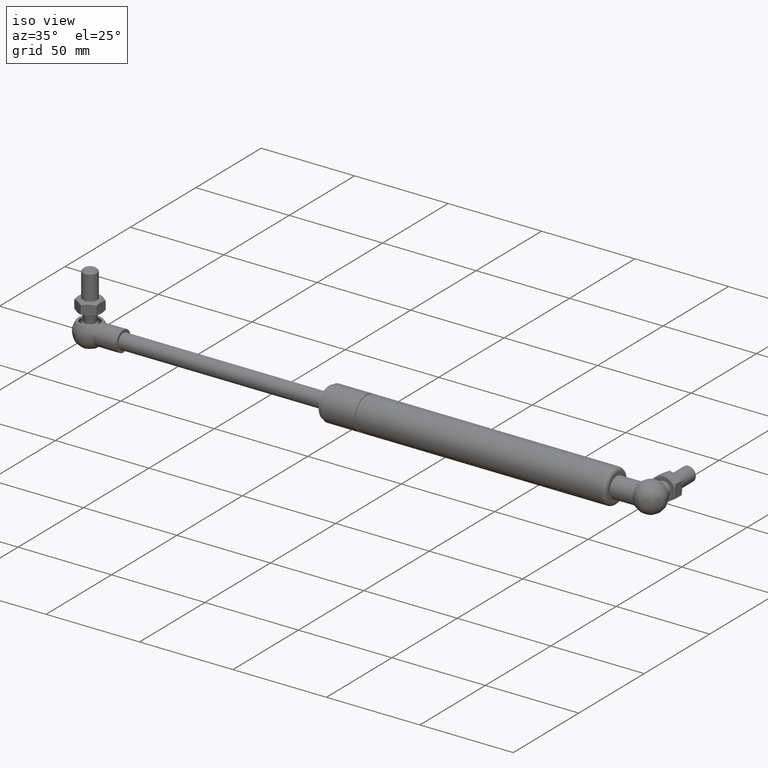
[diagram: clean part render]
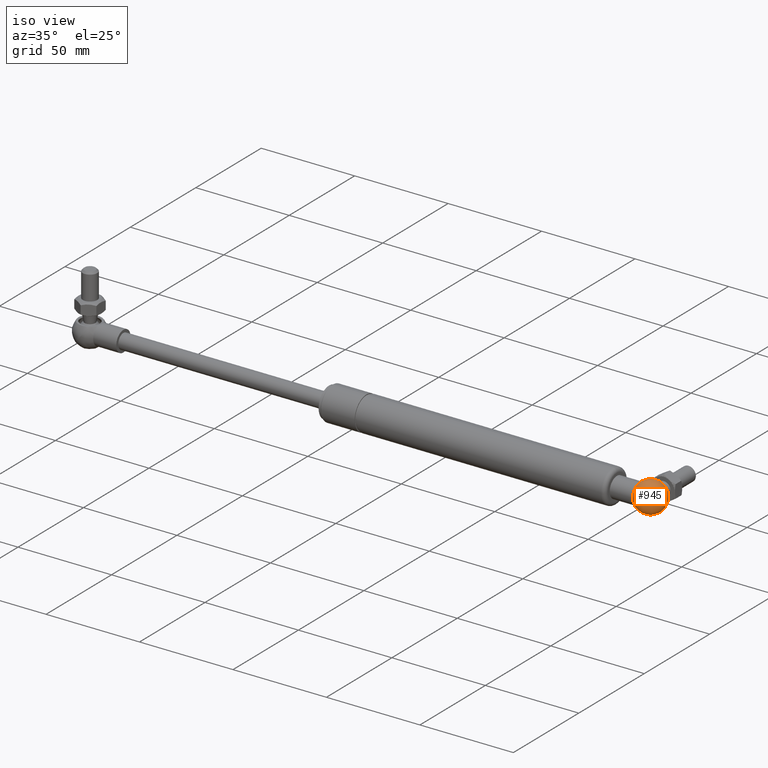
[diagram: same view with one face highlighted and labeled with its STEP entity id]
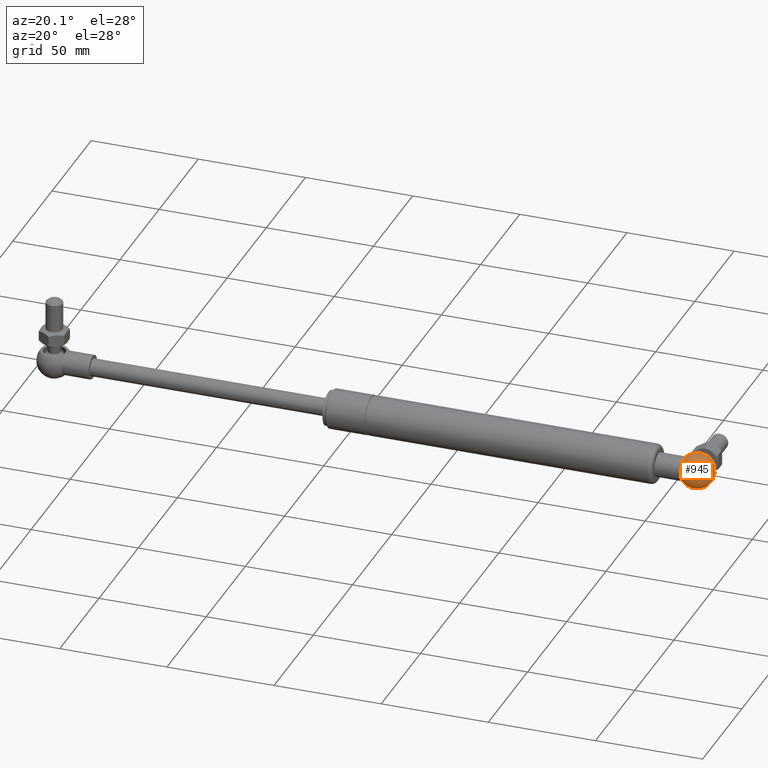
[diagram: same view with one face highlighted and labeled with its STEP entity id]
A machine part, iso view. The second image highlights one B-rep face of the part: STEP entity #945.
A second angle (auxiliary view) of the same face is appended — the face is thin or edge-on in the first view.
In plain terms, the highlighted spherical surface has radius 8 mm.
Its self-contained STEP definition (entity closure, byte-faithful):
#57=B_SPLINE_CURVE_WITH_KNOTS('',3,(#1556,#1557,#1558,#1559,#1560,#1561,
#1562,#1563,#1564,#1565,#1566,#1567,#1568,#1569,#1570,#1571,#1572,#1573,
#1574,#1575,#1576,#1577,#1578,#1579,#1580,#1581,#1582,#1583,#1584,#1585),
 .UNSPECIFIED.,.F.,.F.,(4,2,2,2,2,2,2,2,2,2,2,2,2,2,4),(0.226411490740119,
0.414498239778627,0.621672182915766,0.828846126052906,1.03602006919005,
1.24319401232718,1.4504431322165,1.65769225210581,1.86494399782939,2.07219574355296,
2.27936994878894,2.48654415402491,2.69371835926088,2.90089256449685,3.0889831618439),
 .UNSPECIFIED.);
#60=SPHERICAL_SURFACE('',#1067,8.);
#193=FACE_BOUND('',#352,.T.);
#352=EDGE_LOOP('',(#714,#715));
#420=CIRCLE('',#1050,6.2449979983984);
#480=VERTEX_POINT('',#1543);
#481=VERTEX_POINT('',#1545);
#560=EDGE_CURVE('',#481,#480,#420,.T.);
#565=EDGE_CURVE('',#480,#481,#57,.T.);
#714=ORIENTED_EDGE('',*,*,#565,.T.);
#715=ORIENTED_EDGE('',*,*,#560,.T.);
#945=ADVANCED_FACE('',(#193),#60,.T.);
#1050=AXIS2_PLACEMENT_3D('',#1546,#1269,#1270);
#1067=AXIS2_PLACEMENT_3D('',#1602,#1305,#1306);
#1269=DIRECTION('center_axis',(-1.,-1.51049968003737E-16,0.));
#1270=DIRECTION('ref_axis',(0.,0.,-1.));
#1305=DIRECTION('center_axis',(6.12323399573677E-17,0.,1.));
#1306=DIRECTION('ref_axis',(1.,0.,0.));
#1543=CARTESIAN_POINT('',(5.,-5.86642023334873,-10.1412878474779));
#1545=CARTESIAN_POINT('',(5.,-5.74805303087547,-5.55871215252208));
#1546=CARTESIAN_POINT('Origin',(5.,7.55249840018686E-16,-8.));
#1556=CARTESIAN_POINT('Ctrl Pts',(5.,-5.86642023334873,-10.1412878474779));
#1557=CARTESIAN_POINT('Ctrl Pts',(4.72281011655418,-5.88188651154419,-10.746165763081));
#1558=CARTESIAN_POINT('Ctrl Pts',(4.33212034981124,-5.89588500020387,-11.2961108828518));
#1559=CARTESIAN_POINT('Ctrl Pts',(3.40057256123341,-5.91953676970379,-12.2275396109939));
#1560=CARTESIAN_POINT('Ctrl Pts',(2.78217069209722,-5.93024264975391,-12.6507577079101));
#1561=CARTESIAN_POINT('Ctrl Pts',(1.42717457985649,-5.94442146261415,-13.2119885932371));
#1562=CARTESIAN_POINT('Ctrl Pts',(0.690579810457132,-5.94789878864797,-13.35));
#1563=CARTESIAN_POINT('Ctrl Pts',(-0.690579810457132,-5.94789878864797,
-13.35));
#1564=CARTESIAN_POINT('Ctrl Pts',(-1.42717457985649,-5.94442146261415,-13.2119885932371));
#1565=CARTESIAN_POINT('Ctrl Pts',(-2.78217069209722,-5.93024264975392,-12.6507577079101));
#1566=CARTESIAN_POINT('Ctrl Pts',(-3.40057256123341,-5.91953676970379,-12.2275396109939));
#1567=CARTESIAN_POINT('Ctrl Pts',(-4.37728209886278,-5.89473835449027,-11.2509549058901));
#1568=CARTESIAN_POINT('Ctrl Pts',(-4.80062492398551,-5.87899042757763,-10.6324285393634));
#1569=CARTESIAN_POINT('Ctrl Pts',(-5.36198303670494,-5.84431147736533,-9.27725071650779));
#1570=CARTESIAN_POINT('Ctrl Pts',(-5.5,-5.82537536900061,-8.5406000844389));
#1571=CARTESIAN_POINT('Ctrl Pts',(-5.5,-5.78970081456712,-7.1593911656983));
#1572=CARTESIAN_POINT('Ctrl Pts',(-5.36198004124213,-5.77058335538966,-6.42273643760707));
#1573=CARTESIAN_POINT('Ctrl Pts',(-4.80061640720328,-5.73524889492895,-5.06755651486028));
#1574=CARTESIAN_POINT('Ctrl Pts',(-4.37727174973509,-5.71903613407637,-4.44903161650161));
#1575=CARTESIAN_POINT('Ctrl Pts',(-3.40056355442188,-5.69336465091006,-3.47245451205789));
#1576=CARTESIAN_POINT('Ctrl Pts',(-2.78216570379731,-5.68219381988249,-3.04923977106125));
#1577=CARTESIAN_POINT('Ctrl Pts',(-1.42717456874216,-5.66735907782827,-2.48801185706722));
#1578=CARTESIAN_POINT('Ctrl Pts',(-0.690580684119908,-5.66370020393029,
-2.35));
#1579=CARTESIAN_POINT('Ctrl Pts',(0.690580684119906,-5.66370020393029,-2.35));
#1580=CARTESIAN_POINT('Ctrl Pts',(1.42717456874216,-5.66735907782827,-2.48801185706721));
#1581=CARTESIAN_POINT('Ctrl Pts',(2.78216570379731,-5.68219381988249,-3.04923977106125));
#1582=CARTESIAN_POINT('Ctrl Pts',(3.40056355442188,-5.69336465091006,-3.4724545120579));
#1583=CARTESIAN_POINT('Ctrl Pts',(4.33211325855557,-5.71784920286017,-4.40387918636048));
#1584=CARTESIAN_POINT('Ctrl Pts',(4.72280731652588,-5.73226810276546,-4.95382812675633));
#1585=CARTESIAN_POINT('Ctrl Pts',(5.,-5.74805303087546,-5.55871215252208));
#1602=CARTESIAN_POINT('Origin',(-9.90007792659375E-16,0.,-8.));